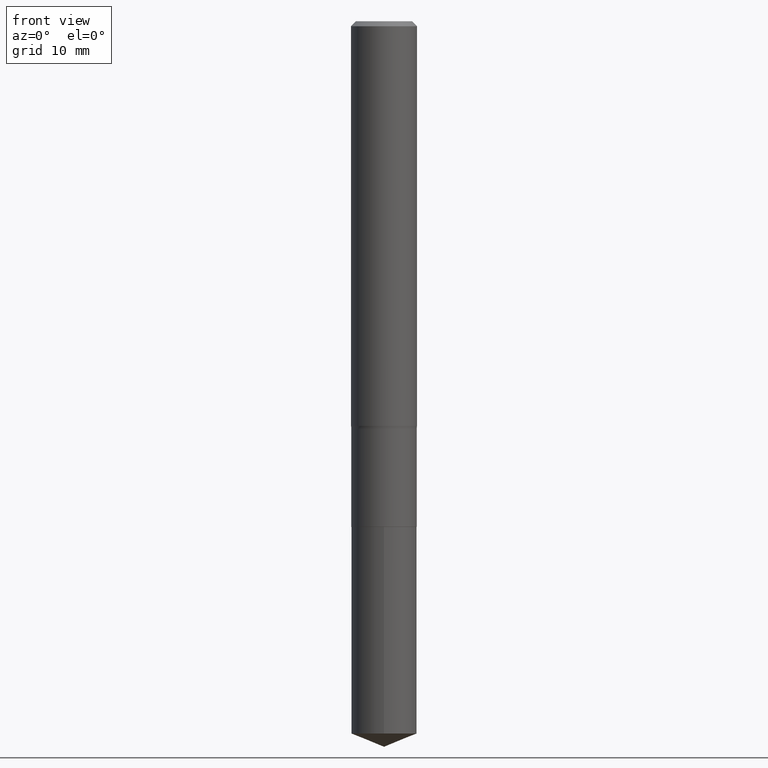
[diagram: clean part render]
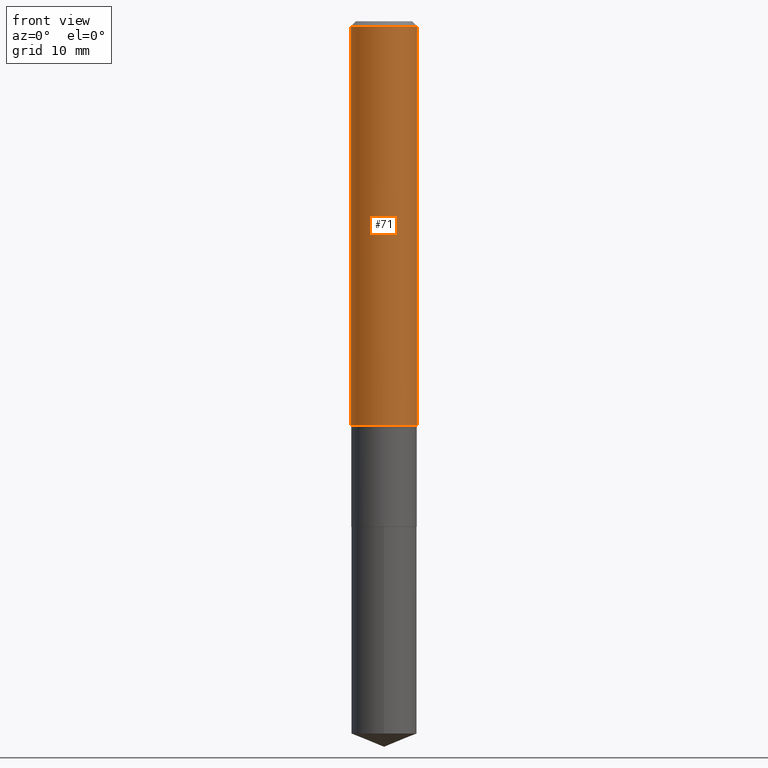
[diagram: same view with one face highlighted and labeled with its STEP entity id]
A machine part, front view. The second image highlights one B-rep face of the part: STEP entity #71.
In plain terms, the highlighted cylindrical surface (edge-blend (fillet) strip) has radius 2.9997 mm, axis along (-0, 0, 1).
Its self-contained STEP definition (entity closure, byte-faithful):
#4 = ORIENTED_EDGE ( 'NONE', *, *, #459, .T. ) ;
#19 = CYLINDRICAL_SURFACE ( 'NONE', #94, 0.1181000000000001077 ) ;
#23 = VERTEX_POINT ( 'NONE', #463 ) ;
#29 = AXIS2_PLACEMENT_3D ( 'NONE', #338, #304, #416 ) ;
#68 = DIRECTION ( 'NONE',  ( -2.445468806185136877E-29, 3.491481338843145188E-15, 1.000000000000000000 ) ) ;
#71 = ADVANCED_FACE ( 'NONE', ( #173 ), #19, .T. ) ;
#78 = EDGE_CURVE ( 'NONE', #421, #440, #293, .T. ) ;
#83 = DIRECTION ( 'NONE',  ( -2.445468806185136597E-29, 3.491481338843145583E-15, 1.000000000000000000 ) ) ;
#94 = AXIS2_PLACEMENT_3D ( 'NONE', #330, #134, #435 ) ;
#132 = EDGE_LOOP ( 'NONE', ( #179, #312, #4, #299 ) ) ;
#134 = DIRECTION ( 'NONE',  ( -2.445468806185136597E-29, 3.491481338843145583E-15, 1.000000000000000000 ) ) ;
#170 = CARTESIAN_POINT ( 'NONE',  ( -0.1180999999999999966, -1.721327181045480930E-15, -0.01771500000000010913 ) ) ;
#173 = FACE_OUTER_BOUND ( 'NONE', #132, .T. ) ;
#179 = ORIENTED_EDGE ( 'NONE', *, *, #78, .F. ) ;
#211 = EDGE_CURVE ( 'NONE', #440, #23, #423, .T. ) ;
#214 = CARTESIAN_POINT ( 'NONE',  ( -0.1181000000000001909, -4.219953741106035435E-15, -1.448985178799489182 ) ) ;
#223 = LINE ( 'NONE', #264, #364 ) ;
#264 = CARTESIAN_POINT ( 'NONE',  ( 0.1181000000000001077, -8.246878922347488542E-16, 5.758764772215005345E-30 ) ) ;
#293 = LINE ( 'NONE', #300, #363 ) ;
#299 = ORIENTED_EDGE ( 'NONE', *, *, #211, .F. ) ;
#300 = CARTESIAN_POINT ( 'NONE',  ( -0.1181000000000001077, 8.391509709326790846E-16, -5.809262341591049389E-30 ) ) ;
#304 = DIRECTION ( 'NONE',  ( -2.445468806185136597E-29, 3.491481338843145583E-15, 1.000000000000000000 ) ) ;
#312 = ORIENTED_EDGE ( 'NONE', *, *, #465, .T. ) ;
#325 = DIRECTION ( 'NONE',  ( 1.000000000000000000, -6.982962677686266711E-15, 0.000000000000000000 ) ) ;
#330 = CARTESIAN_POINT ( 'NONE',  ( 0.000000000000000000, 0.000000000000000000, 0.000000000000000000 ) ) ;
#338 = CARTESIAN_POINT ( 'NONE',  ( 3.543448055378744051E-29, -5.059104712038714421E-15, -1.448985178799489182 ) ) ;
#363 = VECTOR ( 'NONE', #395, 39.37007874015748143 ) ;
#364 = VECTOR ( 'NONE', #68, 39.37007874015748143 ) ;
#376 = VERTEX_POINT ( 'NONE', #436 ) ;
#395 = DIRECTION ( 'NONE',  ( -2.445468806185136877E-29, 3.491481338843145188E-15, 1.000000000000000000 ) ) ;
#416 = DIRECTION ( 'NONE',  ( 1.000000000000000000, -6.982962677686269077E-15, 0.000000000000000000 ) ) ;
#421 = VERTEX_POINT ( 'NONE', #214 ) ;
#423 = CIRCLE ( 'NONE', #449, 0.1180999999999999966 ) ;
#424 = CIRCLE ( 'NONE', #29, 0.1181000000000001909 ) ;
#427 = CARTESIAN_POINT ( 'NONE',  ( 4.332147990156995868E-31, -6.185159191760670395E-17, -0.01771500000000010913 ) ) ;
#435 = DIRECTION ( 'NONE',  ( 1.000000000000000000, -6.982962677686266711E-15, 4.876176775795935793E-29 ) ) ;
#436 = CARTESIAN_POINT ( 'NONE',  ( 0.1181000000000001909, -5.883792604273464262E-15, -1.448985178799489182 ) ) ;
#440 = VERTEX_POINT ( 'NONE', #170 ) ;
#449 = AXIS2_PLACEMENT_3D ( 'NONE', #427, #83, #325 ) ;
#459 = EDGE_CURVE ( 'NONE', #376, #23, #223, .T. ) ;
#463 = CARTESIAN_POINT ( 'NONE',  ( 0.1180999999999999966, -8.865394841523547570E-16, -0.01771500000000010913 ) ) ;
#465 = EDGE_CURVE ( 'NONE', #421, #376, #424, .T. ) ;